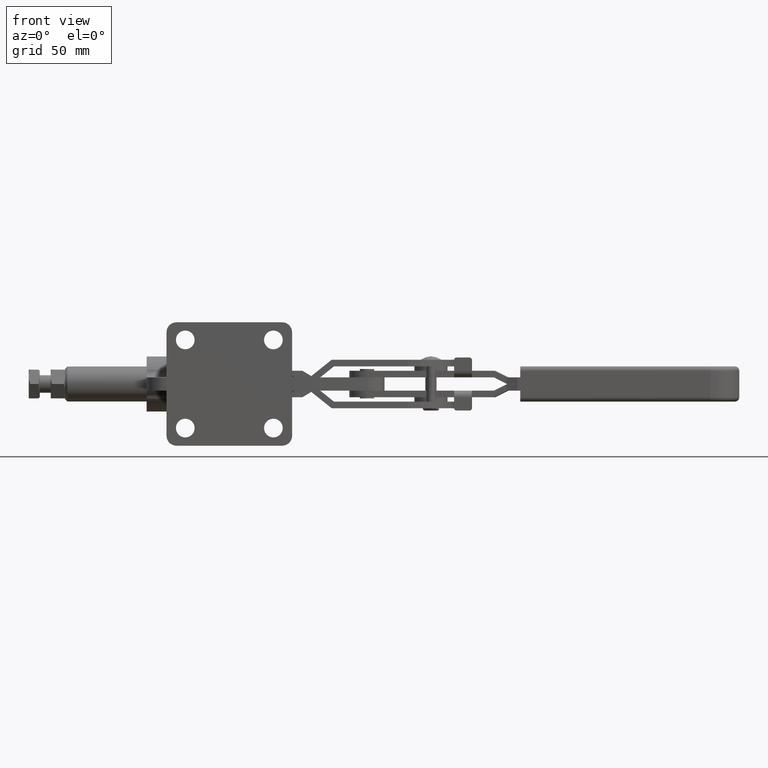
[diagram: clean part render]
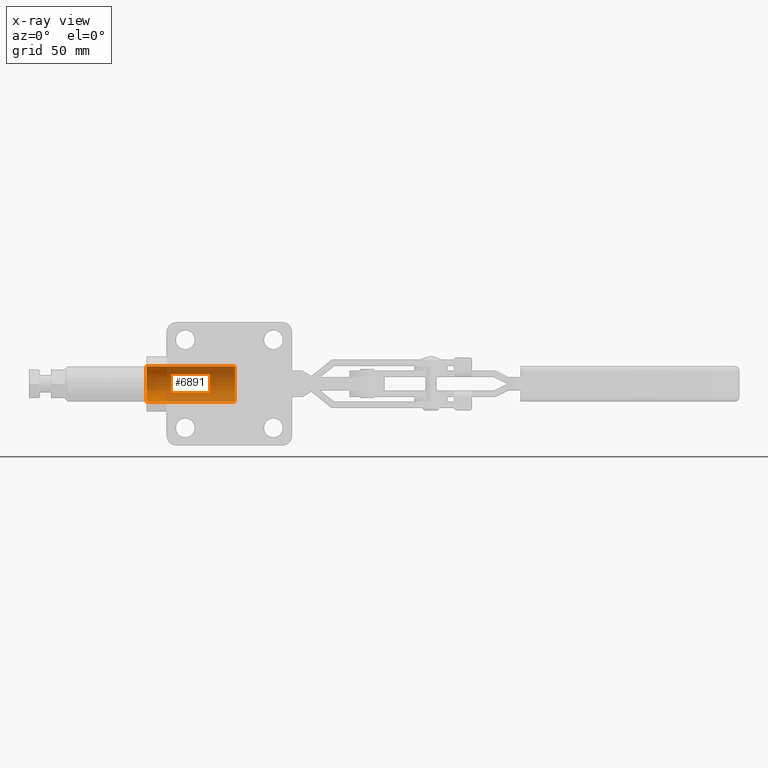
[diagram: x-ray — body ghosted, one internal face saturated and labeled with its STEP entity id]
A machine part, front view, then the same camera in x-ray: the body is ghosted and one INTERNAL B-rep face — a face not visible from any outside direction — is saturated and labeled: STEP entity #6891.
In plain terms, the highlighted cylindrical surface (edge-blend (fillet) strip) has radius 7.95 mm, axis along (-1, -0, -0).
Its self-contained STEP definition (entity closure, byte-faithful):
#27 = FACE_OUTER_BOUND ( 'NONE', #3679, .T. ) ;
#95 = VERTEX_POINT ( 'NONE', #303 ) ;
#160 = CARTESIAN_POINT ( 'NONE',  ( 39.99999999999999300, 42.99999999999928900, -3.035681531188806600 ) ) ;
#240 = EDGE_CURVE ( 'NONE', #3197, #3230, #7527, .T. ) ;
#303 = CARTESIAN_POINT ( 'NONE',  ( 39.99999999999999300, 42.99999999999928900, -3.035681531188806600 ) ) ;
#379 = CARTESIAN_POINT ( 'NONE',  ( -3.469446951953614200E-015, 42.99999999999928900, -3.035681531188806600 ) ) ;
#689 = EDGE_CURVE ( 'NONE', #5662, #3197, #6077, .T. ) ;
#1078 = ORIENTED_EDGE ( 'NONE', *, *, #4074, .T. ) ;
#1194 = ORIENTED_EDGE ( 'NONE', *, *, #689, .F. ) ;
#1311 = AXIS2_PLACEMENT_3D ( 'NONE', #7718, #6523, #3404 ) ;
#2140 = CARTESIAN_POINT ( 'NONE',  ( -3.469446951953614200E-015, 42.99999999999928900, -18.93568153118880900 ) ) ;
#2469 = ORIENTED_EDGE ( 'NONE', *, *, #240, .F. ) ;
#2497 = AXIS2_PLACEMENT_3D ( 'NONE', #5759, #4172, #6351 ) ;
#3197 = VERTEX_POINT ( 'NONE', #2140 ) ;
#3230 = VERTEX_POINT ( 'NONE', #379 ) ;
#3404 = DIRECTION ( 'NONE',  ( 0.0000000000000000000, 0.0000000000000000000, 1.000000000000000000 ) ) ;
#3679 = EDGE_LOOP ( 'NONE', ( #1194, #1078, #7035, #2469 ) ) ;
#3763 = DIRECTION ( 'NONE',  ( 1.000000000000000000, 0.0000000000000000000, 0.0000000000000000000 ) ) ;
#3931 = DIRECTION ( 'NONE',  ( -1.000000000000000000, -0.0000000000000000000, -0.0000000000000000000 ) ) ;
#4074 = EDGE_CURVE ( 'NONE', #5662, #95, #4688, .T. ) ;
#4172 = DIRECTION ( 'NONE',  ( 1.000000000000000000, 0.0000000000000000000, 0.0000000000000000000 ) ) ;
#4688 = CIRCLE ( 'NONE', #7776, 7.950000000000000200 ) ;
#4862 = CARTESIAN_POINT ( 'NONE',  ( 39.99999999999999300, 42.99999999999928900, -10.98568153118880600 ) ) ;
#5662 = VERTEX_POINT ( 'NONE', #6520 ) ;
#5759 = CARTESIAN_POINT ( 'NONE',  ( -3.469446951953614200E-015, 42.99999999999928900, -10.98568153118880600 ) ) ;
#5770 = EDGE_CURVE ( 'NONE', #95, #3230, #7437, .T. ) ;
#5808 = VECTOR ( 'NONE', #3931, 1000.000000000000000 ) ;
#6077 = LINE ( 'NONE', #6651, #7514 ) ;
#6351 = DIRECTION ( 'NONE',  ( 0.0000000000000000000, 0.0000000000000000000, -1.000000000000000000 ) ) ;
#6520 = CARTESIAN_POINT ( 'NONE',  ( 39.99999999999999300, 42.99999999999928900, -18.93568153118880900 ) ) ;
#6523 = DIRECTION ( 'NONE',  ( -1.000000000000000000, -0.0000000000000000000, -0.0000000000000000000 ) ) ;
#6651 = CARTESIAN_POINT ( 'NONE',  ( 39.99999999999999300, 42.99999999999928900, -18.93568153118880900 ) ) ;
#6891 = ADVANCED_FACE ( 'NONE', ( #27 ), #7512, .F. ) ;
#7035 = ORIENTED_EDGE ( 'NONE', *, *, #5770, .T. ) ;
#7185 = DIRECTION ( 'NONE',  ( 0.0000000000000000000, 0.0000000000000000000, -1.000000000000000000 ) ) ;
#7437 = LINE ( 'NONE', #160, #5808 ) ;
#7445 = DIRECTION ( 'NONE',  ( -1.000000000000000000, -0.0000000000000000000, -0.0000000000000000000 ) ) ;
#7512 = CYLINDRICAL_SURFACE ( 'NONE', #1311, 7.950000000000000200 ) ;
#7514 = VECTOR ( 'NONE', #7445, 1000.000000000000000 ) ;
#7527 = CIRCLE ( 'NONE', #2497, 7.950000000000000200 ) ;
#7718 = CARTESIAN_POINT ( 'NONE',  ( 39.99999999999999300, 42.99999999999928900, -10.98568153118880600 ) ) ;
#7776 = AXIS2_PLACEMENT_3D ( 'NONE', #4862, #3763, #7185 ) ;